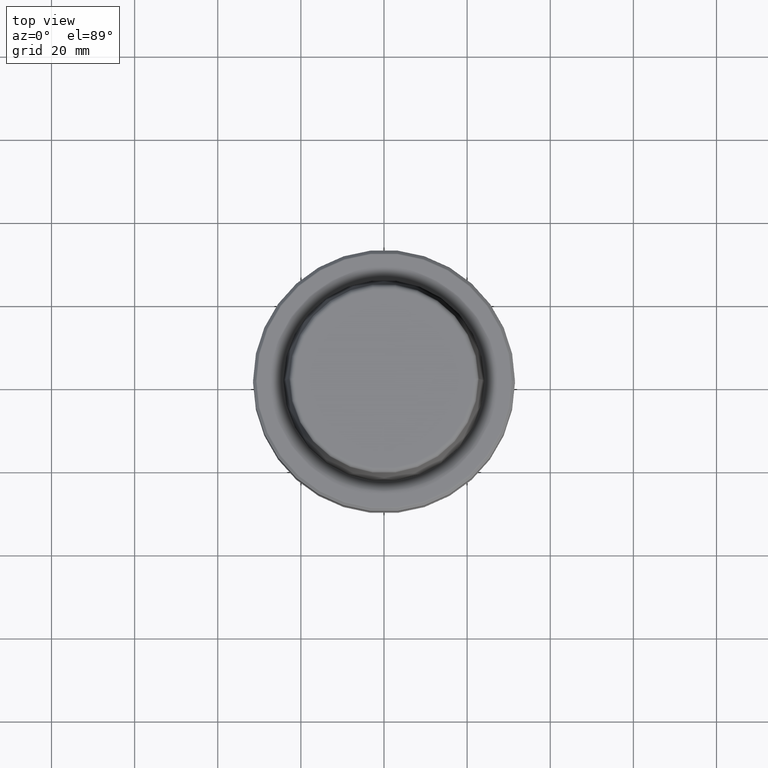
[diagram: clean part render]
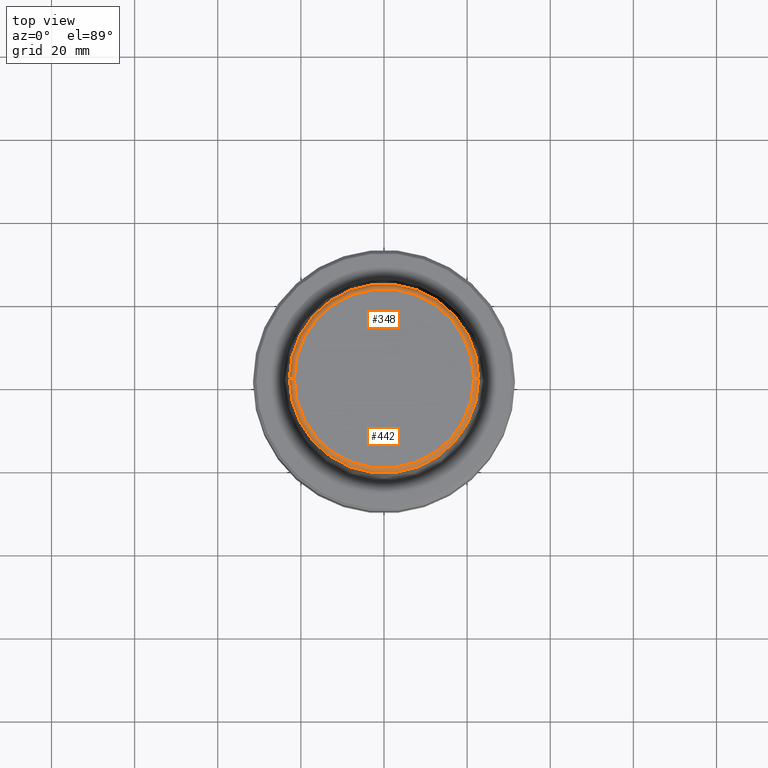
[diagram: same view with one multi-face feature highlighted, each face labeled with its STEP entity id]
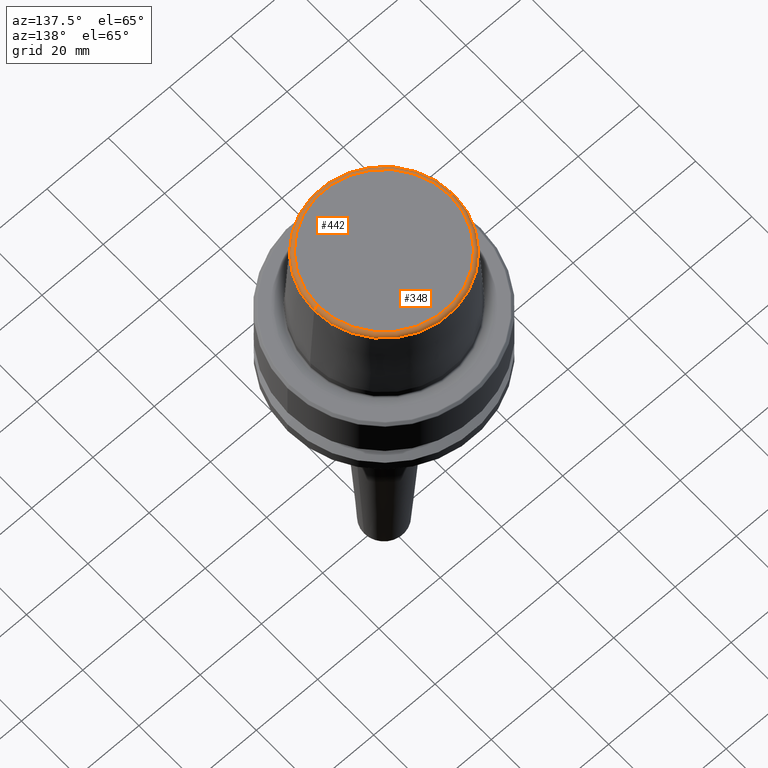
[diagram: same view with one multi-face feature highlighted, each face labeled with its STEP entity id]
A machine part, top view. The highlighted faces form ONE feature: a constant-radius fillet chain: 2 tangent blend faces with common blend radius 1.2 mm. The faces share edges in the B-rep.
A second angle (auxiliary view) of the same feature is appended — it is thin or edge-on in the first view.
Their STEP definitions:
[1] entity #442 (Torus):
#71 = DIRECTION ( 'NONE',  ( -0.0000000000000000000, -0.0000000000000000000, 1.000000000000000000 ) ) ;
#103 = DIRECTION ( 'NONE',  ( -0.0000000000000000000, -0.0000000000000000000, 1.000000000000000000 ) ) ;
#181 = ORIENTED_EDGE ( 'NONE', *, *, #934, .T. ) ;
#183 = CARTESIAN_POINT ( 'NONE',  ( 21.58108272732117100, 0.0000000000000000000, 31.89999999999999900 ) ) ;
#200 = VERTEX_POINT ( 'NONE', #551 ) ;
#206 = DIRECTION ( 'NONE',  ( 1.000000000000000000, 0.0000000000000000000, 0.0000000000000000000 ) ) ;
#269 = DIRECTION ( 'NONE',  ( 1.000000000000000000, 0.0000000000000000000, 0.0000000000000000000 ) ) ;
#276 = DIRECTION ( 'NONE',  ( -0.0000000000000000000, -0.0000000000000000000, 1.000000000000000000 ) ) ;
#280 = DIRECTION ( 'NONE',  ( -1.000000000000000000, 1.224646799147353200E-016, 0.0000000000000000000 ) ) ;
#281 = VERTEX_POINT ( 'NONE', #1037 ) ;
#282 = CIRCLE ( 'NONE', #495, 1.200000000000003100 ) ;
#365 = CARTESIAN_POINT ( 'NONE',  ( -21.58108272732117100, 2.642920388414810300E-015, 30.69999999999999200 ) ) ;
#388 = DIRECTION ( 'NONE',  ( 0.0000000000000000000, -1.000000000000000000, 0.0000000000000000000 ) ) ;
#400 = ORIENTED_EDGE ( 'NONE', *, *, #762, .T. ) ;
#418 = ORIENTED_EDGE ( 'NONE', *, *, #897, .F. ) ;
#442 = ADVANCED_FACE ( 'NONE', ( #672 ), #951, .T. ) ;
#479 = CARTESIAN_POINT ( 'NONE',  ( 0.0000000000000000000, 0.0000000000000000000, 31.89999999999999900 ) ) ;
#495 = AXIS2_PLACEMENT_3D ( 'NONE', #1056, #388, #1050 ) ;
#551 = CARTESIAN_POINT ( 'NONE',  ( -21.58108272732117100, 2.716307157494421400E-015, 31.89999999999999900 ) ) ;
#672 = FACE_OUTER_BOUND ( 'NONE', #795, .T. ) ;
#678 = DIRECTION ( 'NONE',  ( 1.000000000000000000, 0.0000000000000000000, 0.0000000000000000000 ) ) ;
#722 = AXIS2_PLACEMENT_3D ( 'NONE', #479, #276, #678 ) ;
#759 = VERTEX_POINT ( 'NONE', #183 ) ;
#760 = CARTESIAN_POINT ( 'NONE',  ( 0.0000000000000000000, 0.0000000000000000000, 30.69999999999999200 ) ) ;
#762 = EDGE_CURVE ( 'NONE', #964, #759, #282, .T. ) ;
#795 = EDGE_LOOP ( 'NONE', ( #930, #181, #400, #418 ) ) ;
#812 = CIRCLE ( 'NONE', #722, 21.58108272732117100 ) ;
#822 = CIRCLE ( 'NONE', #1013, 22.77957961851797100 ) ;
#828 = AXIS2_PLACEMENT_3D ( 'NONE', #760, #71, #269 ) ;
#881 = CARTESIAN_POINT ( 'NONE',  ( 0.0000000000000000000, 0.0000000000000000000, 30.76004333261571900 ) ) ;
#897 = EDGE_CURVE ( 'NONE', #200, #759, #812, .T. ) ;
#924 = EDGE_CURVE ( 'NONE', #281, #200, #1102, .T. ) ;
#930 = ORIENTED_EDGE ( 'NONE', *, *, #924, .F. ) ;
#934 = EDGE_CURVE ( 'NONE', #281, #964, #822, .T. ) ;
#951 = TOROIDAL_SURFACE ( 'NONE', #828, 21.58108272732117100, 1.200000000000003100 ) ;
#964 = VERTEX_POINT ( 'NONE', #1166 ) ;
#1013 = AXIS2_PLACEMENT_3D ( 'NONE', #881, #103, #206 ) ;
#1037 = CARTESIAN_POINT ( 'NONE',  ( -22.77957961851797100, 0.0000000000000000000, 30.76004333261571900 ) ) ;
#1050 = DIRECTION ( 'NONE',  ( 0.0000000000000000000, 0.0000000000000000000, -1.000000000000000000 ) ) ;
#1056 = CARTESIAN_POINT ( 'NONE',  ( 21.58108272732117100, 0.0000000000000000000, 30.69999999999999200 ) ) ;
#1102 = CIRCLE ( 'NONE', #1130, 1.200000000000003100 ) ;
#1130 = AXIS2_PLACEMENT_3D ( 'NONE', #365, #1246, #280 ) ;
#1166 = CARTESIAN_POINT ( 'NONE',  ( 22.77957961851797100, 2.874852597157249900E-015, 30.76004333261571900 ) ) ;
#1246 = DIRECTION ( 'NONE',  ( 1.224646799147353200E-016, 1.000000000000000000, 0.0000000000000000000 ) ) ;
[2] entity #348 (Torus):
#24 = EDGE_CURVE ( 'NONE', #759, #200, #805, .T. ) ;
#65 = DIRECTION ( 'NONE',  ( 1.000000000000000000, 0.0000000000000000000, 0.0000000000000000000 ) ) ;
#117 = ORIENTED_EDGE ( 'NONE', *, *, #663, .T. ) ;
#183 = CARTESIAN_POINT ( 'NONE',  ( 21.58108272732117100, 0.0000000000000000000, 31.89999999999999900 ) ) ;
#200 = VERTEX_POINT ( 'NONE', #551 ) ;
#208 = FACE_OUTER_BOUND ( 'NONE', #1119, .T. ) ;
#267 = ORIENTED_EDGE ( 'NONE', *, *, #24, .F. ) ;
#280 = DIRECTION ( 'NONE',  ( -1.000000000000000000, 1.224646799147353200E-016, 0.0000000000000000000 ) ) ;
#281 = VERTEX_POINT ( 'NONE', #1037 ) ;
#282 = CIRCLE ( 'NONE', #495, 1.200000000000003100 ) ;
#299 = CARTESIAN_POINT ( 'NONE',  ( 0.0000000000000000000, 0.0000000000000000000, 30.69999999999999200 ) ) ;
#348 = ADVANCED_FACE ( 'NONE', ( #208 ), #959, .T. ) ;
#365 = CARTESIAN_POINT ( 'NONE',  ( -21.58108272732117100, 2.642920388414810300E-015, 30.69999999999999200 ) ) ;
#388 = DIRECTION ( 'NONE',  ( 0.0000000000000000000, -1.000000000000000000, 0.0000000000000000000 ) ) ;
#451 = CARTESIAN_POINT ( 'NONE',  ( 0.0000000000000000000, 0.0000000000000000000, 30.76004333261571900 ) ) ;
#495 = AXIS2_PLACEMENT_3D ( 'NONE', #1056, #388, #1050 ) ;
#518 = AXIS2_PLACEMENT_3D ( 'NONE', #299, #970, #1241 ) ;
#551 = CARTESIAN_POINT ( 'NONE',  ( -21.58108272732117100, 2.716307157494421400E-015, 31.89999999999999900 ) ) ;
#663 = EDGE_CURVE ( 'NONE', #964, #281, #1004, .T. ) ;
#759 = VERTEX_POINT ( 'NONE', #183 ) ;
#761 = AXIS2_PLACEMENT_3D ( 'NONE', #1011, #1076, #65 ) ;
#762 = EDGE_CURVE ( 'NONE', #964, #759, #282, .T. ) ;
#779 = ORIENTED_EDGE ( 'NONE', *, *, #762, .F. ) ;
#788 = ORIENTED_EDGE ( 'NONE', *, *, #924, .T. ) ;
#805 = CIRCLE ( 'NONE', #761, 21.58108272732117100 ) ;
#838 = DIRECTION ( 'NONE',  ( 1.000000000000000000, 0.0000000000000000000, 0.0000000000000000000 ) ) ;
#918 = DIRECTION ( 'NONE',  ( -0.0000000000000000000, -0.0000000000000000000, 1.000000000000000000 ) ) ;
#924 = EDGE_CURVE ( 'NONE', #281, #200, #1102, .T. ) ;
#959 = TOROIDAL_SURFACE ( 'NONE', #518, 21.58108272732117100, 1.200000000000003100 ) ;
#964 = VERTEX_POINT ( 'NONE', #1166 ) ;
#970 = DIRECTION ( 'NONE',  ( -0.0000000000000000000, -0.0000000000000000000, 1.000000000000000000 ) ) ;
#1004 = CIRCLE ( 'NONE', #1243, 22.77957961851797100 ) ;
#1011 = CARTESIAN_POINT ( 'NONE',  ( 0.0000000000000000000, 0.0000000000000000000, 31.89999999999999900 ) ) ;
#1037 = CARTESIAN_POINT ( 'NONE',  ( -22.77957961851797100, 0.0000000000000000000, 30.76004333261571900 ) ) ;
#1050 = DIRECTION ( 'NONE',  ( 0.0000000000000000000, 0.0000000000000000000, -1.000000000000000000 ) ) ;
#1056 = CARTESIAN_POINT ( 'NONE',  ( 21.58108272732117100, 0.0000000000000000000, 30.69999999999999200 ) ) ;
#1076 = DIRECTION ( 'NONE',  ( -0.0000000000000000000, -0.0000000000000000000, 1.000000000000000000 ) ) ;
#1102 = CIRCLE ( 'NONE', #1130, 1.200000000000003100 ) ;
#1119 = EDGE_LOOP ( 'NONE', ( #117, #788, #267, #779 ) ) ;
#1130 = AXIS2_PLACEMENT_3D ( 'NONE', #365, #1246, #280 ) ;
#1166 = CARTESIAN_POINT ( 'NONE',  ( 22.77957961851797100, 2.874852597157249900E-015, 30.76004333261571900 ) ) ;
#1241 = DIRECTION ( 'NONE',  ( 1.000000000000000000, 0.0000000000000000000, 0.0000000000000000000 ) ) ;
#1243 = AXIS2_PLACEMENT_3D ( 'NONE', #451, #918, #838 ) ;
#1246 = DIRECTION ( 'NONE',  ( 1.224646799147353200E-016, 1.000000000000000000, 0.0000000000000000000 ) ) ;